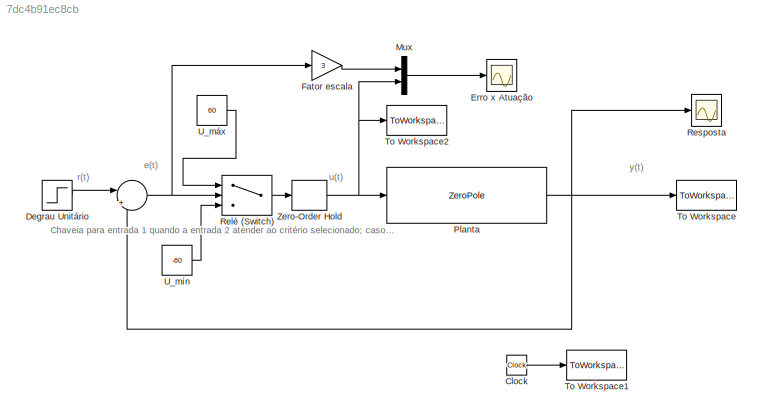
MODEL slx_7dc4b91ec8cb
KIND model
CONFIG AbsTol = auto
CONFIG EnableMultiTasking = on
CONFIG FixedStep = auto
CONFIG MaxStep = T
CONFIG MinStep = auto
CONFIG RelTol = 1e-3
CONFIG SampleTimeConstraint = Unconstrained
CONFIG SolverName = ode23t
CONFIG StartTime = 0.0
CONFIG StopTime = 10
BLOCK [Sum]  
  Inputs = ||+|-
BLOCK [Clock] Clock
BLOCK [Step] Degrau Unitário
  SampleTime = 0
BLOCK [Scope] Erro x Atuação
  Floating = off
  NumInputPorts = 1
  ScopeSpecificationString = Simulink.scopes.TimeScopeBlockCfg('CurrentConfiguration', extmgr.ConfigurationSet(extmgr.Configuration('Core','General UI',true,'FigureColor',[1 1 1]),extmgr.Configuration('Core','Source UI',true),extmgr.Configuration('Sources','WiredSimulink',true,'DataLoggingVariableName','ScopeData1','DataLoggingLimitDataPoints',true,'DataLoggingSaveFormat','Array','DataLoggingDecimation','1','DataLoggingDecima...<+2371ch>
BLOCK [Gain] Fator escala
  Gain = 3
BLOCK [Mux] Mux
  DisplayOption = bar
  Inputs = 2
BLOCK [ZeroPole] Planta
  Gain = [21]
  Poles = [-1  -3  -7]
  Zeros = []
BLOCK [Switch] Relé (Switch)
  InputSameDT = off
  SaturateOnIntegerOverflow = off
BLOCK [Scope] Resposta
  Floating = off
  NumInputPorts = 1
  ScopeSpecificationString = Simulink.scopes.TimeScopeBlockCfg('CurrentConfiguration', extmgr.ConfigurationSet(extmgr.Configuration('Core','General UI',true,'FigureColor',[1 1 1]),extmgr.Configuration('Core','Source UI',true),extmgr.Configuration('Sources','WiredSimulink',true,'DataLoggingLimitDataPoints',true,'DataLoggingSaveFormat','Array','DataLoggingDecimation','1','DataLoggingDecimateData',true),extmgr.Configuration('Vis...<+3183ch>
BLOCK [ToWorkspace] To Workspace
  FixptAsFi = on
  MaxDataPoints = inf
  SampleTime = -1
  SaveFormat = Timeseries
  VariableName = y
BLOCK [ToWorkspace] To Workspace1
  FixptAsFi = on
  MaxDataPoints = inf
  SampleTime = -1
  VariableName = t
BLOCK [ToWorkspace] To Workspace2
  FixptAsFi = on
  MaxDataPoints = inf
  SampleTime = T
  SaveFormat = Timeseries
  VariableName = u
BLOCK [Constant] U_máx
  SampleTime = T
  Value = 60
BLOCK [Constant] U_mín
  SampleTime = T
  Value = -60
BLOCK [ZeroOrderHold] Zero-Order Hold
  SampleTime = T
ANNOTATION (root): e(t)
ANNOTATION (root): r(t)
ANNOTATION (root): u(t)
ANNOTATION (root): y(t)
ANNOTATION (root): Chaveia para entrada 1 quando a entrada 2 atender ao critério selecionado; caso contrário, comute para entrada 3. As entradas são numeradas de cima para baixo (ou da esquerda para a direita). A primeira e a terceira porta de entrada são portas de dados e a segunda porta de entrada é a porta de controle.
NET  :1 -> Fator escala:1, Relé (Switch):2
LINE Clock:1 -> To Workspace1:1
LINE Degrau Unitário:1 ->  :1
LINE Fator escala:1 -> Mux:1
LINE Mux:1 -> Erro x Atuação:1
NET Planta:1 ->  :2, Resposta:1, To Workspace:1
LINE Relé (Switch):1 -> Zero-Order Hold:1
LINE U_máx:1 -> Relé (Switch):1
LINE U_mín:1 -> Relé (Switch):3
NET Zero-Order Hold:1 -> Mux:2, Planta:1, To Workspace2:1
note: NET lines group one-source signal fan-out (src -> all destinations, sorted); 1:1 wires keep LINE
